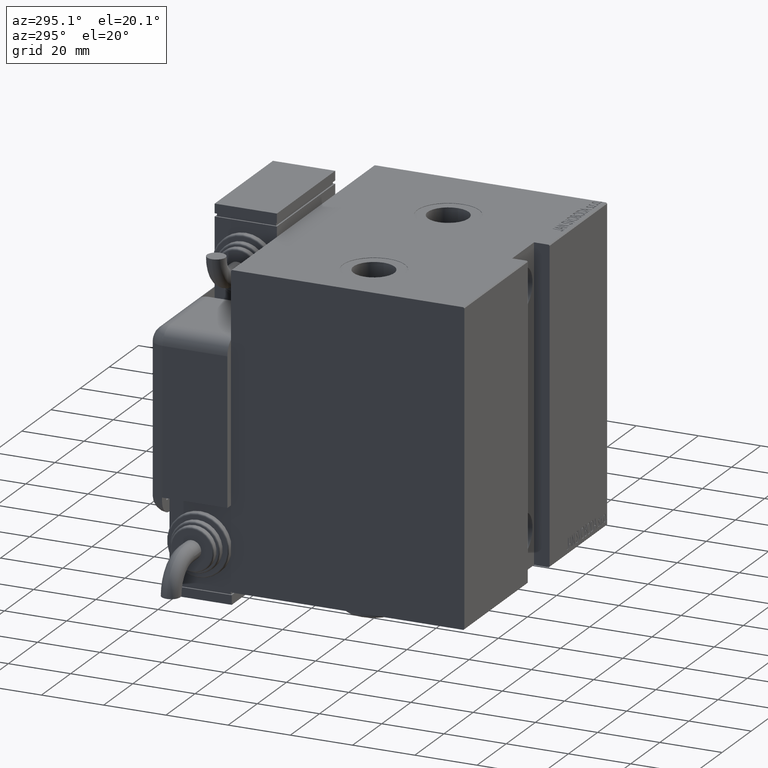
[diagram: clean part render]
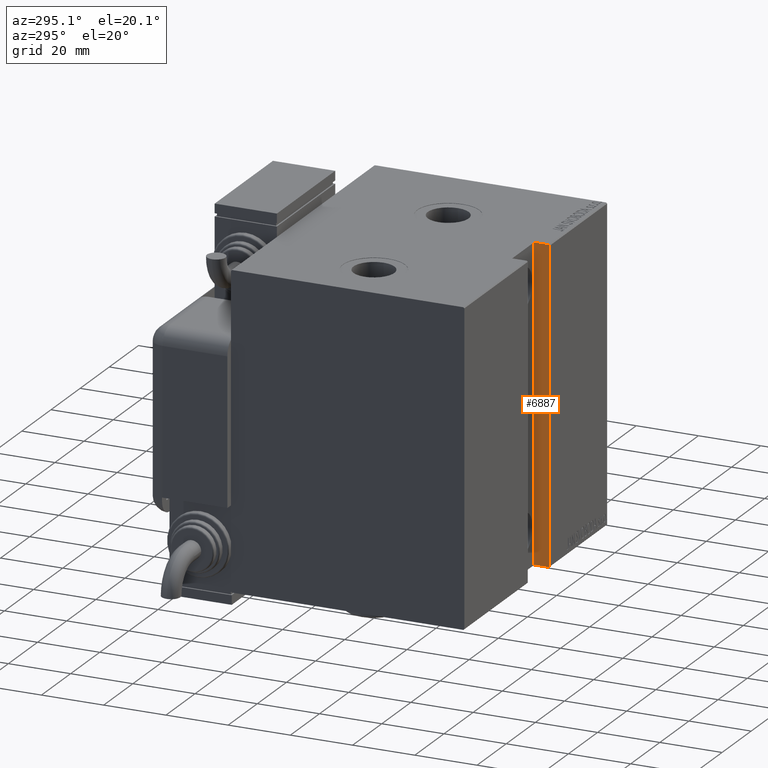
[diagram: same view with one face highlighted and labeled with its STEP entity id]
A machine part, auxiliary view. The second image highlights one B-rep face of the part: STEP entity #6887.
In plain terms, the highlighted planar face has unit normal (1, 0, 0).
Its self-contained STEP definition (entity closure, byte-faithful):
#757 = VERTEX_POINT ( 'NONE', #22073 ) ;
#2362 = VECTOR ( 'NONE', #45288, 1000.000000000000000 ) ;
#2794 = CARTESIAN_POINT ( 'NONE',  ( 39.50000000000000000, 32.50000000000000000, -50.00000000000000711 ) ) ;
#3552 = CARTESIAN_POINT ( 'NONE',  ( 39.50000000000000000, 32.50000000000000000, -50.00000000000000711 ) ) ;
#4631 = DIRECTION ( 'NONE',  ( -0.000000000000000000, 1.000000000000000000, -0.000000000000000000 ) ) ;
#5526 = EDGE_CURVE ( 'NONE', #757, #58642, #54188, .T. ) ;
#6504 = ORIENTED_EDGE ( 'NONE', *, *, #47015, .T. ) ;
#6887 = ADVANCED_FACE ( 'NONE', ( #22311 ), #58279, .F. ) ;
#9174 = LINE ( 'NONE', #27617, #17548 ) ;
#12759 = CARTESIAN_POINT ( 'NONE',  ( 39.50000000000000711, 37.19999999999998153, 50.00000000000001421 ) ) ;
#13229 = DIRECTION ( 'NONE',  ( 6.938893903907228378E-17, 0.000000000000000000, 1.000000000000000000 ) ) ;
#15672 = CARTESIAN_POINT ( 'NONE',  ( 39.50000000000000000, 37.50000000000000711, -49.70000000000000284 ) ) ;
#15928 = ORIENTED_EDGE ( 'NONE', *, *, #5526, .T. ) ;
#17548 = VECTOR ( 'NONE', #4631, 1000.000000000000000 ) ;
#17566 = VERTEX_POINT ( 'NONE', #45165 ) ;
#18815 = VECTOR ( 'NONE', #42591, 1000.000000000000114 ) ;
#18842 = VECTOR ( 'NONE', #40613, 1000.000000000000000 ) ;
#18935 = VECTOR ( 'NONE', #50271, 1000.000000000000000 ) ;
#22073 = CARTESIAN_POINT ( 'NONE',  ( 39.50000000000000711, 37.50000000000000000, 49.70000000000000284 ) ) ;
#22311 = FACE_OUTER_BOUND ( 'NONE', #58407, .T. ) ;
#22443 = DIRECTION ( 'NONE',  ( 4.906538933386854558E-17, -0.7071067811865392461, 0.7071067811865556774 ) ) ;
#25139 = CARTESIAN_POINT ( 'NONE',  ( 39.50000000000000711, 32.50000000000000000, 49.99999999999999289 ) ) ;
#26554 = ORIENTED_EDGE ( 'NONE', *, *, #38900, .F. ) ;
#27300 = EDGE_CURVE ( 'NONE', #53645, #757, #36217, .T. ) ;
#27401 = ORIENTED_EDGE ( 'NONE', *, *, #52850, .F. ) ;
#27530 = EDGE_CURVE ( 'NONE', #17566, #52169, #44538, .T. ) ;
#27617 = CARTESIAN_POINT ( 'NONE',  ( 39.50000000000000711, 32.50000000000000000, 49.99999999999999289 ) ) ;
#28738 = VERTEX_POINT ( 'NONE', #25139 ) ;
#29007 = CARTESIAN_POINT ( 'NONE',  ( 39.50000000000000000, 37.19999999999998863, -50.00000000000000711 ) ) ;
#31229 = CARTESIAN_POINT ( 'NONE',  ( 39.50000000000000000, 32.50000000000000000, -50.00000000000000711 ) ) ;
#31530 = LINE ( 'NONE', #31229, #18935 ) ;
#31983 = CARTESIAN_POINT ( 'NONE',  ( 39.50000000000000000, 37.50000000000000000, -50.00000000000000711 ) ) ;
#32735 = VECTOR ( 'NONE', #22443, 1000.000000000000114 ) ;
#36217 = LINE ( 'NONE', #31983, #2362 ) ;
#38900 = EDGE_CURVE ( 'NONE', #28738, #58642, #9174, .T. ) ;
#38925 = CARTESIAN_POINT ( 'NONE',  ( 39.50000000000000711, 37.19999999999998153, 49.99999999999999289 ) ) ;
#40613 = DIRECTION ( 'NONE',  ( -0.000000000000000000, 1.000000000000000000, -0.000000000000000000 ) ) ;
#42591 = DIRECTION ( 'NONE',  ( 4.906538933386739926E-17, 0.7071067811865556774, 0.7071067811865392461 ) ) ;
#44538 = LINE ( 'NONE', #2794, #18842 ) ;
#45165 = CARTESIAN_POINT ( 'NONE',  ( 39.50000000000000000, 32.50000000000000000, -50.00000000000000711 ) ) ;
#45288 = DIRECTION ( 'NONE',  ( 6.938893903907228378E-17, 0.000000000000000000, 1.000000000000000000 ) ) ;
#47015 = EDGE_CURVE ( 'NONE', #52169, #53645, #52267, .T. ) ;
#50271 = DIRECTION ( 'NONE',  ( 6.938893903907228378E-17, 0.000000000000000000, 1.000000000000000000 ) ) ;
#51168 = AXIS2_PLACEMENT_3D ( 'NONE', #3552, #54661, #13229 ) ;
#52169 = VERTEX_POINT ( 'NONE', #29007 ) ;
#52267 = LINE ( 'NONE', #15672, #18815 ) ;
#52312 = ORIENTED_EDGE ( 'NONE', *, *, #27300, .T. ) ;
#52850 = EDGE_CURVE ( 'NONE', #17566, #28738, #31530, .T. ) ;
#53645 = VERTEX_POINT ( 'NONE', #59731 ) ;
#54188 = LINE ( 'NONE', #12759, #32735 ) ;
#54661 = DIRECTION ( 'NONE',  ( -1.000000000000000000, 0.000000000000000000, 6.938893903907228378E-17 ) ) ;
#58279 = PLANE ( 'NONE',  #51168 ) ;
#58407 = EDGE_LOOP ( 'NONE', ( #52312, #15928, #26554, #27401, #59297, #6504 ) ) ;
#58642 = VERTEX_POINT ( 'NONE', #38925 ) ;
#59297 = ORIENTED_EDGE ( 'NONE', *, *, #27530, .T. ) ;
#59731 = CARTESIAN_POINT ( 'NONE',  ( 39.50000000000000000, 37.50000000000000000, -49.70000000000000284 ) ) ;